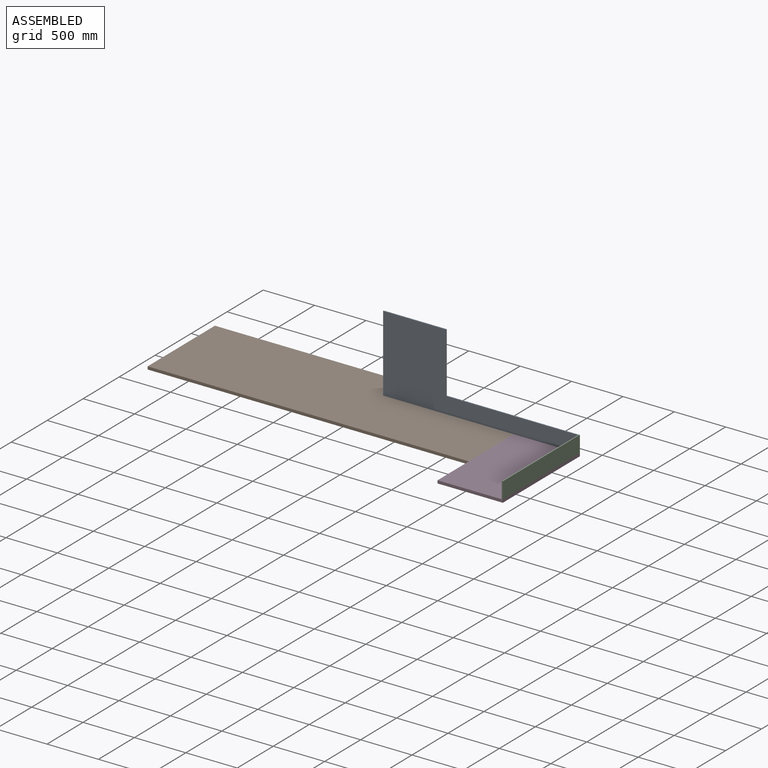
[diagram: assembled view]
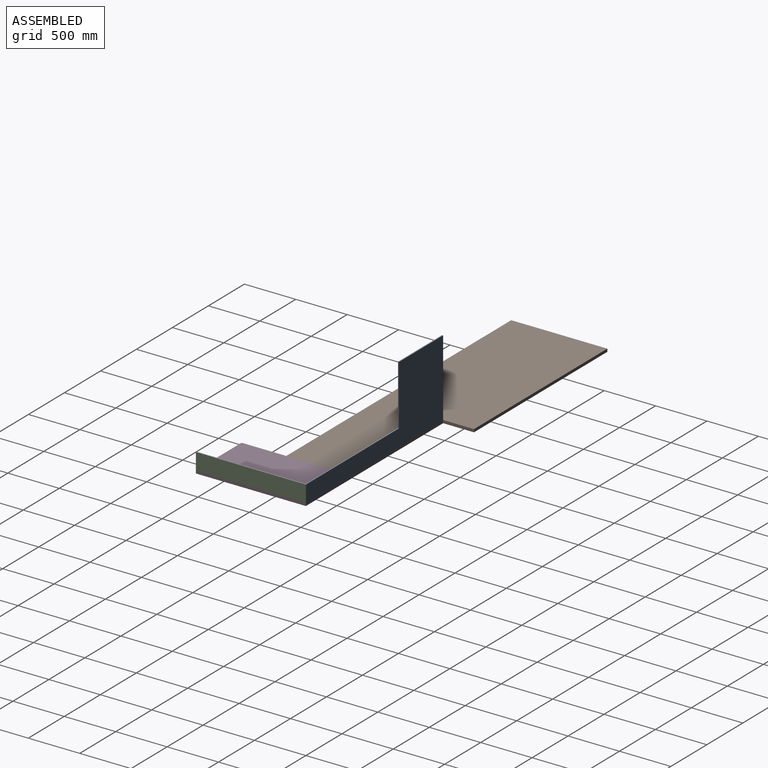
[diagram: assembled view, second angle]
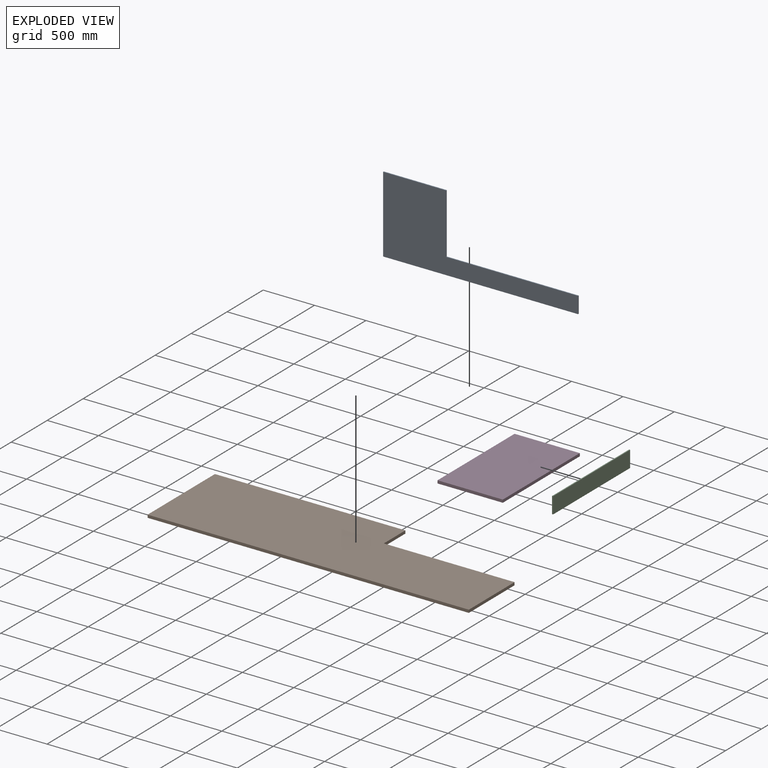
[diagram: exploded view]
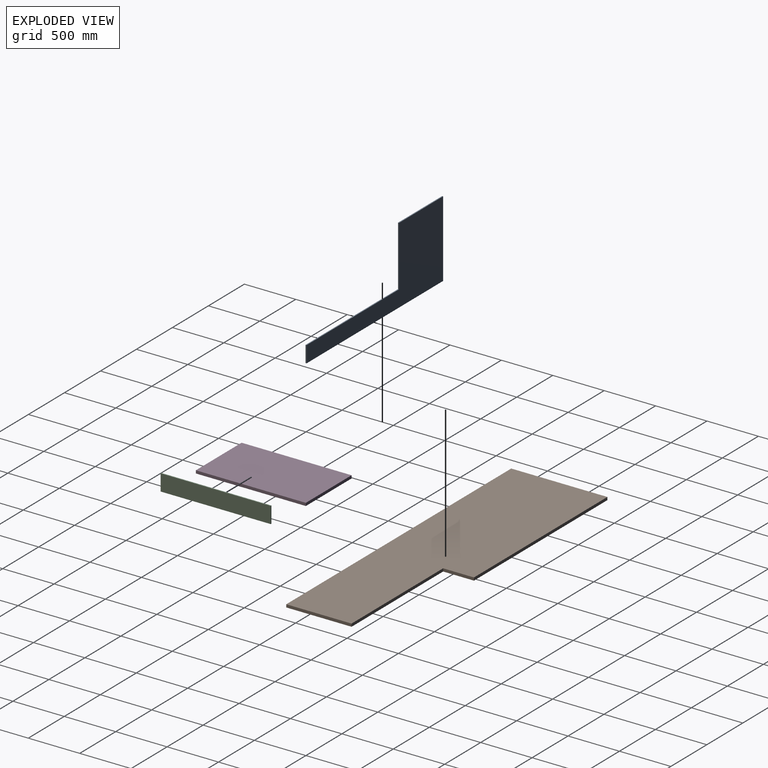
[diagram: exploded view, second angle]
ASSEMBLY  parts=4 mates=3
PART A: 8 faces, bbox 1897x10x744 mm
  f0: plane 744x10mm, normal (-1,0,0), area 7440mm2, adj f1,f5,f6,f7
  f1: plane 1897x10mm, normal (0,0,-1), area 18970mm2, adj f0,f2,f6,f7
  f2: plane 160x10mm, normal (1,0,0), area 1600mm2, adj f1,f3,f6,f7
  f3: plane 1284x10mm, normal (0,0,1), area 12840mm2, adj f2,f4,f6,f7
  f4: plane 584x10mm, normal (1,0,0), area 5840mm2, adj f3,f5,f6,f7
  f5: plane 613x10mm, normal (0,0,1), area 6130mm2, adj f0,f4,f6,f7
  f6: plane 1897x744mm, normal (0,-1,0), area 661512mm2, adj f0,f1,f2,f3,f4,f5
  f7: plane 1897x744mm, normal (0,1,0), area 661512mm2, adj f0,f1,f2,f3,f4,f5
PART B: 8 faces, bbox 935x3125x28 mm
  f0: plane 3125x28mm, normal (1,0,0), area 87500mm2, adj f1,f5,f6,f7
  f1: plane 635x28mm, normal (0,1,0), area 17780mm2, adj f0,f2,f6,f7
  f2: plane 1272x28mm, normal (-1,0,0), area 35616mm2, adj f1,f3,f6,f7
  f3: plane 300x28mm, normal (0,1,0), area 8400mm2, adj f2,f4,f6,f7
  f4: plane 1853x28mm, normal (-1,0,0), area 51884mm2, adj f3,f5,f6,f7
  f5: plane 935x28mm, normal (0,-1,0), area 26180mm2, adj f0,f4,f6,f7
  f6: plane 3125x935mm, normal (0,0,1), area 2540275mm2, adj f0,f1,f2,f3,f4,f5
  f7: plane 3125x935mm, normal (0,0,-1), area 2540275mm2, adj f0,f1,f2,f3,f4,f5
PART C: 6 faces, bbox 1070x10x160 mm
  f0: plane 160x10mm, normal (-1,0,0), area 1600mm2, adj f1,f3,f4,f5
  f1: plane 1070x10mm, normal (0,0,-1), area 10700mm2, adj f0,f2,f4,f5
  f2: plane 160x10mm, normal (1,0,0), area 1600mm2, adj f1,f3,f4,f5
  f3: plane 1070x10mm, normal (0,0,1), area 10700mm2, adj f0,f2,f4,f5
  f4: plane 1070x160mm, normal (0,-1,0), area 171200mm2, adj f0,f1,f2,f3
  f5: plane 1070x160mm, normal (0,1,0), area 171200mm2, adj f0,f1,f2,f3
PART D: 6 faces, bbox 1070x635x28 mm
  f0: plane 635x28mm, normal (-1,0,0), area 17780mm2, adj f1,f3,f4,f5
  f1: plane 1070x28mm, normal (0,-1,0), area 29960mm2, adj f0,f2,f4,f5
  f2: plane 635x28mm, normal (1,0,0), area 17780mm2, adj f1,f3,f4,f5
  f3: plane 1070x28mm, normal (0,1,0), area 29960mm2, adj f0,f2,f4,f5
  f4: plane 1070x635mm, normal (0,0,1), area 679450mm2, adj f0,f1,f2,f3
  f5: plane 1070x635mm, normal (0,0,-1), area 679450mm2, adj f0,f1,f2,f3
PLACE A t=(-248.85,981.51,76.32)mm
PLACE B rot(axis=(0,0,-1),90deg) t=(-861.85,981.51,48.32)mm
PLACE C rot(axis=(0,0,-1),90deg) t=(1045.15,981.51,76.32)mm
PLACE D rot(axis=(0,0,-1),90deg) t=(410.15,981.51,48.32)mm
MATE fastened D.f4 <-> C.f1  axis (0,0,1) through (1045.15,-88.49,76.32)mm
MATE fastened C.f4 <-> A.f2  axis (-1,0,0) through (1035.15,981.51,76.32)mm
MATE fastened B.f6 <-> A.f1  axis (0,0,1) through (-861.85,981.51,76.32)mm
